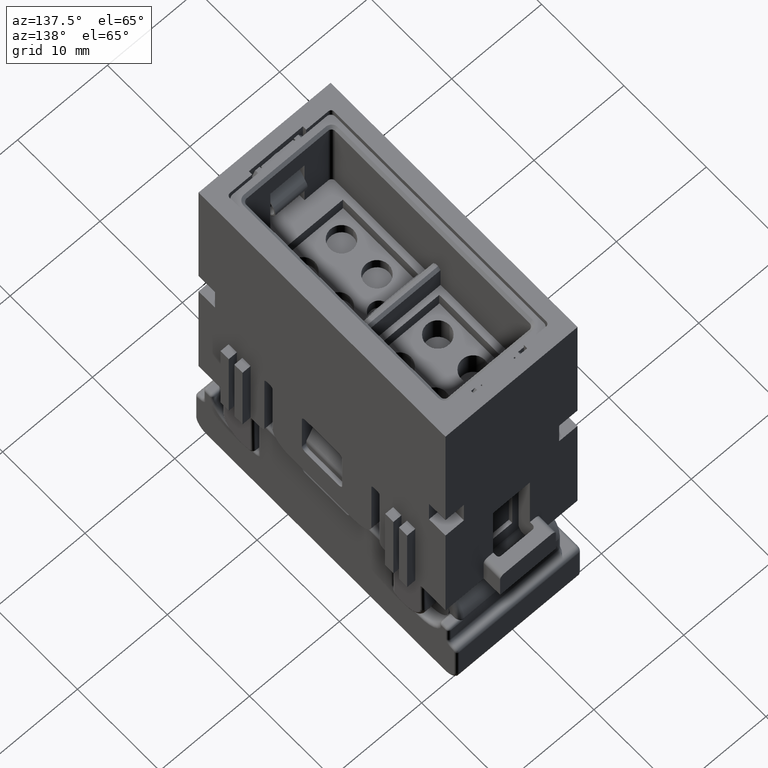
[diagram: clean part render]
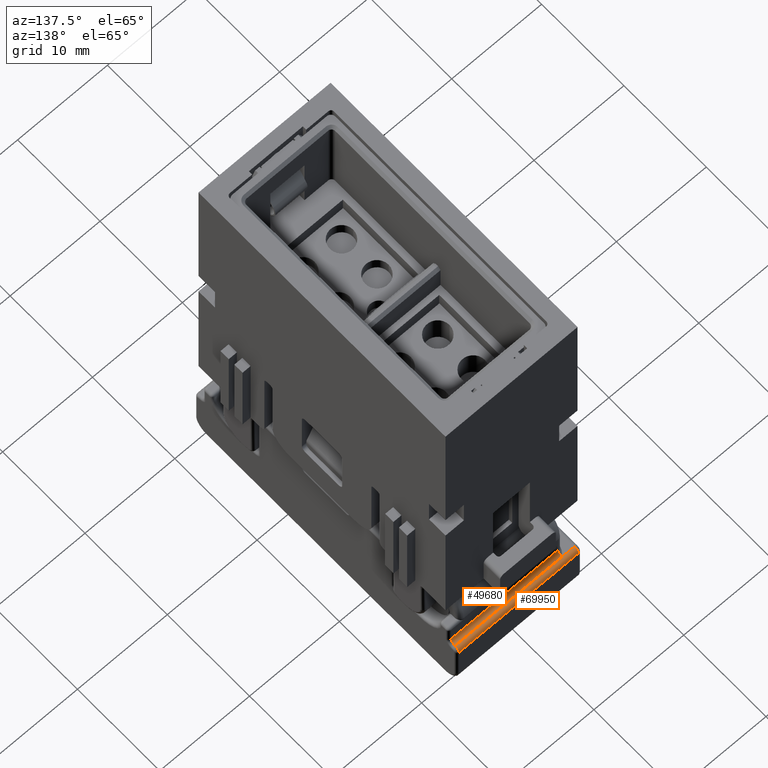
[diagram: same view with one multi-face feature highlighted, each face labeled with its STEP entity id]
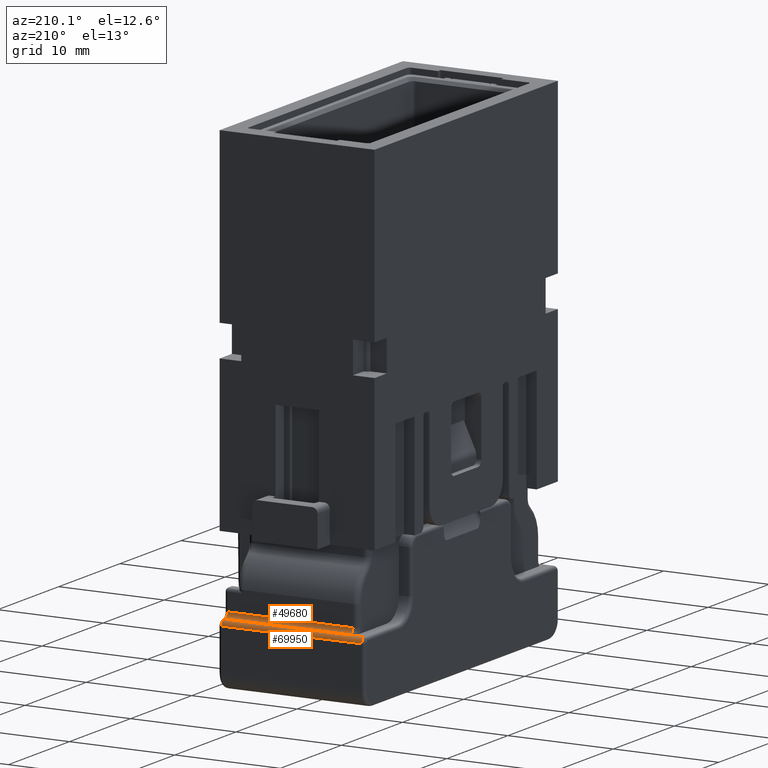
[diagram: same view with one multi-face feature highlighted, each face labeled with its STEP entity id]
A machine part, auxiliary view. The highlighted faces form ONE feature: a constant-radius fillet chain: 2 tangent blend faces with common blend radius 0.5 mm. The faces share edges in the B-rep.
A second angle (auxiliary view) of the same feature is appended — it is thin or edge-on in the first view.
Their STEP definitions:
[1] entity #49680 (Cylinder):
#35690=CARTESIAN_POINT('',(75.6750000000059,52.2999999999879,
-38.7499999999999));
#35700=VERTEX_POINT('',#35690);
#35990=CARTESIAN_POINT('',(75.6750000000058,64.1999999217727,
-38.7499999999999));
#36000=VERTEX_POINT('',#35990);
#36030=CARTESIAN_POINT('',(75.6750000000058,0.,-38.7499999999999));
#36040=DIRECTION('',(0.,1.,0.));
#36050=VECTOR('',#36040,1.);
#36060=LINE('',#36030,#36050);
#36070=EDGE_CURVE('',#35700,#36000,#36060,.T.);
#42300=CARTESIAN_POINT('',(76.1750000000029,64.1999999217726,
-39.2499999999999));
#42310=VERTEX_POINT('',#42300);
#47510=CARTESIAN_POINT('',(76.1750000000058,64.1999999217726,
-38.7499999999999));
#47520=DIRECTION('',(0.,1.,0.));
#47530=DIRECTION('',(1.,0.,0.));
#47540=AXIS2_PLACEMENT_3D('',#47510,#47520,#47530);
#47550=CIRCLE('',#47540,0.5);
#47560=EDGE_CURVE('',#42310,#36000,#47550,.T.);
#49440=CARTESIAN_POINT('',(76.1750000000058,0.,-38.7499999999999));
#49450=DIRECTION('',(0.,1.,0.));
#49460=DIRECTION('',(1.,0.,0.));
#49470=AXIS2_PLACEMENT_3D('',#49440,#49450,#49460);
#49480=CYLINDRICAL_SURFACE('',#49470,0.5);
#49490=CARTESIAN_POINT('',(76.1750000000058,0.,-39.2499999999999));
#49500=DIRECTION('',(0.,1.,0.));
#49510=VECTOR('',#49500,1.);
#49520=LINE('',#49490,#49510);
#49530=CARTESIAN_POINT('',(76.1750000000059,52.2999999999879,
-39.2499999999999));
#49540=VERTEX_POINT('',#49530);
#49550=EDGE_CURVE('',#49540,#42310,#49520,.T.);
#49560=ORIENTED_EDGE('',*,*,#49550,.T.);
#49570=CARTESIAN_POINT('',(76.1750000000059,52.2999999999879,
-38.7499999999999));
#49580=DIRECTION('',(-2.22044604925032E-16,1.,0.));
#49590=DIRECTION('',(1.,2.22044604925032E-16,0.));
#49600=AXIS2_PLACEMENT_3D('',#49570,#49580,#49590);
#49610=CIRCLE('',#49600,0.5);
#49620=EDGE_CURVE('',#49540,#35700,#49610,.T.);
#49630=ORIENTED_EDGE('',*,*,#49620,.F.);
#49640=ORIENTED_EDGE('',*,*,#36070,.F.);
#49650=ORIENTED_EDGE('',*,*,#47560,.T.);
#49660=EDGE_LOOP('',(#49650,#49640,#49630,#49560));
#49670=FACE_OUTER_BOUND('',#49660,.T.);
#49680=ADVANCED_FACE('',(#49670),#49480,.F.);
[2] entity #69950 (Cylinder):
#37520=CARTESIAN_POINT('',(76.175,65.599999999984,-39.2499999999999));
#37530=VERTEX_POINT('',#37520);
#37700=CARTESIAN_POINT('',(76.675,65.599999999984,-39.7499999999999));
#37710=VERTEX_POINT('',#37700);
#37740=CARTESIAN_POINT('',(76.175,65.599999999984,-39.7499999999999));
#37750=DIRECTION('',(0.,1.,0.));
#37760=DIRECTION('',(1.,0.,0.));
#37770=AXIS2_PLACEMENT_3D('',#37740,#37750,#37760);
#37780=CIRCLE('',#37770,0.5);
#37790=EDGE_CURVE('',#37530,#37710,#37780,.T.);
#42260=CARTESIAN_POINT('',(76.175,0.,-39.2499999999999));
#42270=DIRECTION('',(0.,-1.,0.));
#42280=VECTOR('',#42270,1.);
#42290=LINE('',#42260,#42280);
#42300=CARTESIAN_POINT('',(76.1750000000029,64.1999999217726,
-39.2499999999999));
#42310=VERTEX_POINT('',#42300);
#42320=EDGE_CURVE('',#37530,#42310,#42290,.T.);
#49490=CARTESIAN_POINT('',(76.1750000000058,0.,-39.2499999999999));
#49500=DIRECTION('',(0.,1.,0.));
#49510=VECTOR('',#49500,1.);
#49520=LINE('',#49490,#49510);
#49530=CARTESIAN_POINT('',(76.1750000000059,52.2999999999879,
-39.2499999999999));
#49540=VERTEX_POINT('',#49530);
#49550=EDGE_CURVE('',#49540,#42310,#49520,.T.);
#69700=CARTESIAN_POINT('',(76.175,0.,-39.7499999999999));
#69710=DIRECTION('',(0.,1.,0.));
#69720=DIRECTION('',(1.,0.,0.));
#69730=AXIS2_PLACEMENT_3D('',#69700,#69710,#69720);
#69740=CYLINDRICAL_SURFACE('',#69730,0.5);
#69750=CARTESIAN_POINT('',(76.675,0.,-39.7499999999999));
#69760=DIRECTION('',(0.,-1.,0.));
#69770=VECTOR('',#69760,1.);
#69780=LINE('',#69750,#69770);
#69790=CARTESIAN_POINT('',(76.675,52.2999999999879,-39.7499999999999));
#69800=VERTEX_POINT('',#69790);
#69810=EDGE_CURVE('',#37710,#69800,#69780,.T.);
#69820=ORIENTED_EDGE('',*,*,#69810,.F.);
#69830=CARTESIAN_POINT('',(76.175,52.2999999999879,-39.7499999999999));
#69840=DIRECTION('',(0.,-1.,9.72479820791799E-31));
#69850=DIRECTION('',(0.,9.72479820791799E-31,1.));
#69860=AXIS2_PLACEMENT_3D('',#69830,#69840,#69850);
#69870=CIRCLE('',#69860,0.5);
#69880=EDGE_CURVE('',#69800,#49540,#69870,.T.);
#69890=ORIENTED_EDGE('',*,*,#69880,.F.);
#69900=ORIENTED_EDGE('',*,*,#49550,.F.);
#69910=ORIENTED_EDGE('',*,*,#42320,.T.);
#69920=ORIENTED_EDGE('',*,*,#37790,.F.);
#69930=EDGE_LOOP('',(#69920,#69910,#69900,#69890,#69820));
#69940=FACE_OUTER_BOUND('',#69930,.T.);
#69950=ADVANCED_FACE('',(#69940),#69740,.T.);